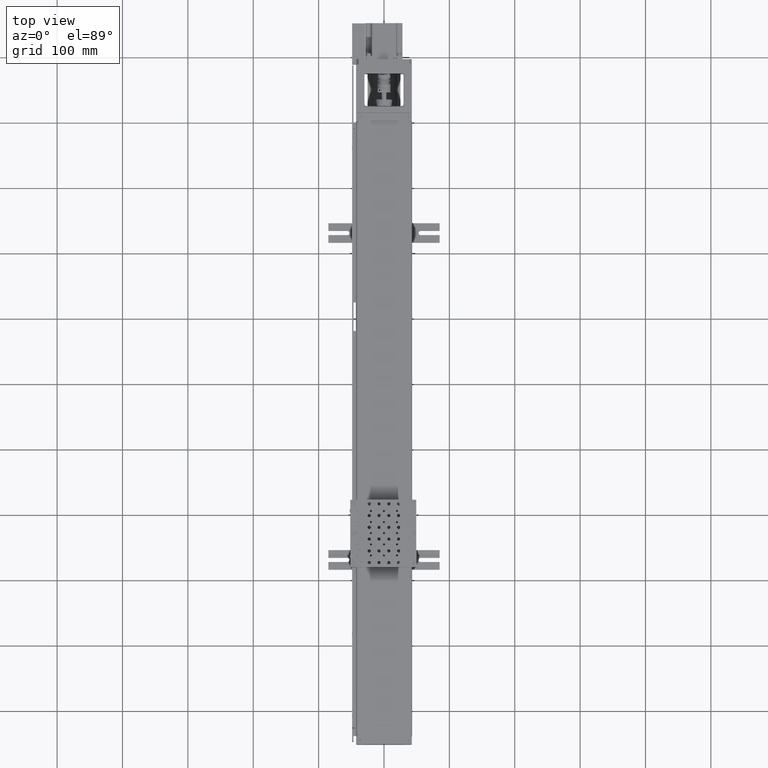
[diagram: clean part render]
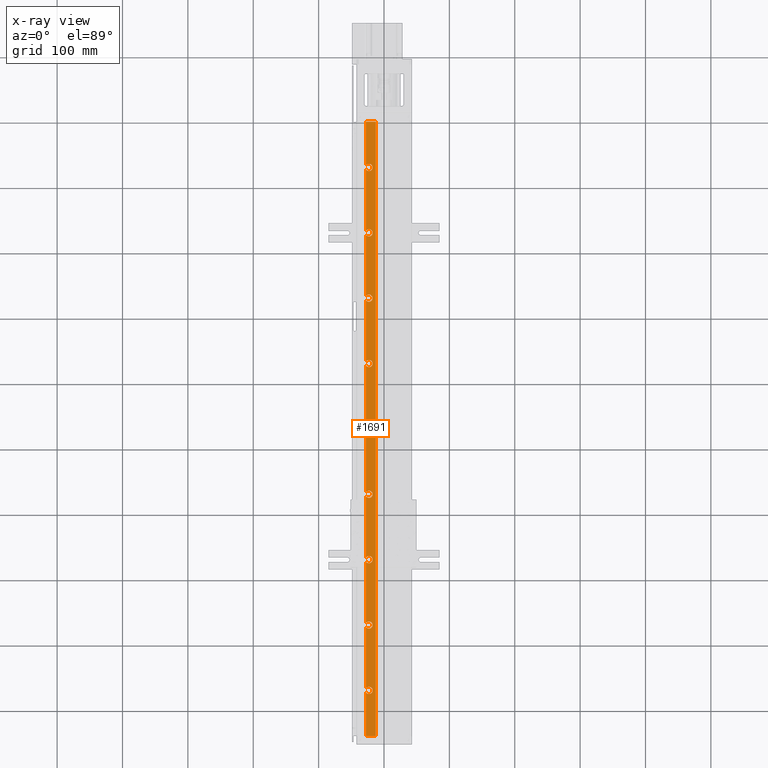
[diagram: x-ray — body ghosted, one internal face saturated and labeled with its STEP entity id]
A machine part, top view, then the same camera in x-ray: the body is ghosted and one INTERNAL B-rep face — a face not visible from any outside direction — is saturated and labeled: STEP entity #1691.
In plain terms, the highlighted planar face has unit normal (0.2588, 0, 0.9659).
Its self-contained STEP definition (entity closure, byte-faithful):
#1691=ADVANCED_FACE('',(#4258),#40557,.T.);
#4258=FACE_OUTER_BOUND('',#7074,.T.);
#7074=EDGE_LOOP('',(#15463,#15464,#15465,#15466,#15467,#15468,#15469,#15470,
#15471,#15472,#15473,#15474,#15475,#15476,#15477,#15478,#15479,#15480,#15481,
#15482,#15483,#15484,#15485,#15486,#15487,#15488,#15489,#15490,#15491,#15492,
#15493));
#15463=ORIENTED_EDGE('',*,*,#25201,.T.);
#15464=ORIENTED_EDGE('',*,*,#28427,.T.);
#15465=ORIENTED_EDGE('',*,*,#25202,.F.);
#15466=ORIENTED_EDGE('',*,*,#25203,.T.);
#15467=ORIENTED_EDGE('',*,*,#25159,.F.);
#15468=ORIENTED_EDGE('',*,*,#25204,.T.);
#15469=ORIENTED_EDGE('',*,*,#25205,.F.);
#15470=ORIENTED_EDGE('',*,*,#25206,.T.);
#15471=ORIENTED_EDGE('',*,*,#28451,.T.);
#15472=ORIENTED_EDGE('',*,*,#25207,.F.);
#15473=ORIENTED_EDGE('',*,*,#25208,.T.);
#15474=ORIENTED_EDGE('',*,*,#28448,.T.);
#15475=ORIENTED_EDGE('',*,*,#25209,.F.);
#15476=ORIENTED_EDGE('',*,*,#25210,.T.);
#15477=ORIENTED_EDGE('',*,*,#28445,.T.);
#15478=ORIENTED_EDGE('',*,*,#25211,.F.);
#15479=ORIENTED_EDGE('',*,*,#25212,.T.);
#15480=ORIENTED_EDGE('',*,*,#28442,.T.);
#15481=ORIENTED_EDGE('',*,*,#25213,.F.);
#15482=ORIENTED_EDGE('',*,*,#25214,.T.);
#15483=ORIENTED_EDGE('',*,*,#28439,.T.);
#15484=ORIENTED_EDGE('',*,*,#25215,.F.);
#15485=ORIENTED_EDGE('',*,*,#25216,.T.);
#15486=ORIENTED_EDGE('',*,*,#28436,.T.);
#15487=ORIENTED_EDGE('',*,*,#25217,.F.);
#15488=ORIENTED_EDGE('',*,*,#25218,.T.);
#15489=ORIENTED_EDGE('',*,*,#28433,.T.);
#15490=ORIENTED_EDGE('',*,*,#25219,.F.);
#15491=ORIENTED_EDGE('',*,*,#25220,.T.);
#15492=ORIENTED_EDGE('',*,*,#28430,.T.);
#15493=ORIENTED_EDGE('',*,*,#25221,.F.);
#25159=EDGE_CURVE('',#37689,#37690,#33358,.T.);
#25201=EDGE_CURVE('',#37732,#39574,#33366,.T.);
#25202=EDGE_CURVE('',#37734,#37733,#30888,.T.);
#25203=EDGE_CURVE('',#37734,#37690,#30889,.T.);
#25204=EDGE_CURVE('',#37689,#37735,#30890,.T.);
#25205=EDGE_CURVE('',#37736,#37735,#30891,.T.);
#25206=EDGE_CURVE('',#37736,#39590,#33367,.T.);
#25207=EDGE_CURVE('',#37738,#37737,#30892,.T.);
#25208=EDGE_CURVE('',#37738,#39588,#33368,.T.);
#25209=EDGE_CURVE('',#37740,#37739,#30893,.T.);
#25210=EDGE_CURVE('',#37740,#39586,#33369,.T.);
#25211=EDGE_CURVE('',#37742,#37741,#30894,.T.);
#25212=EDGE_CURVE('',#37742,#39584,#33370,.T.);
#25213=EDGE_CURVE('',#37744,#37743,#30895,.T.);
#25214=EDGE_CURVE('',#37744,#39582,#33371,.T.);
#25215=EDGE_CURVE('',#37746,#37745,#30896,.T.);
#25216=EDGE_CURVE('',#37746,#39580,#33372,.T.);
#25217=EDGE_CURVE('',#37748,#37747,#30897,.T.);
#25218=EDGE_CURVE('',#37748,#39578,#33373,.T.);
#25219=EDGE_CURVE('',#37750,#37749,#30898,.T.);
#25220=EDGE_CURVE('',#37750,#39576,#33374,.T.);
#25221=EDGE_CURVE('',#37732,#37751,#30899,.T.);
#28427=EDGE_CURVE('',#39574,#37733,#35177,.T.);
#28430=EDGE_CURVE('',#39576,#37751,#35180,.T.);
#28433=EDGE_CURVE('',#39578,#37749,#35183,.T.);
#28436=EDGE_CURVE('',#39580,#37747,#35186,.T.);
#28439=EDGE_CURVE('',#39582,#37745,#35189,.T.);
#28442=EDGE_CURVE('',#39584,#37743,#35192,.T.);
#28445=EDGE_CURVE('',#39586,#37741,#35195,.T.);
#28448=EDGE_CURVE('',#39588,#37739,#35198,.T.);
#28451=EDGE_CURVE('',#39590,#37737,#35201,.T.);
#30888=B_SPLINE_CURVE_WITH_KNOTS('',1,(#98705,#98706),.UNSPECIFIED.,.F.,
 .F.,(2,2),(0.,67.2731971240111),.UNSPECIFIED.);
#30889=B_SPLINE_CURVE_WITH_KNOTS('',1,(#98707,#98708),.UNSPECIFIED.,.F.,
 .F.,(2,2),(-1.67052643043555E-11,15.9380327930966),.UNSPECIFIED.);
#30890=B_SPLINE_CURVE_WITH_KNOTS('',1,(#98709,#98710),.UNSPECIFIED.,.F.,
 .F.,(2,2),(-15.9380327930966,1.67030833608806E-11),.UNSPECIFIED.);
#30891=B_SPLINE_CURVE_WITH_KNOTS('',1,(#98711,#98712),.UNSPECIFIED.,.F.,
 .F.,(2,2),(872.726802875989,940.),.UNSPECIFIED.);
#30892=B_SPLINE_CURVE_WITH_KNOTS('',1,(#98718,#98719),.UNSPECIFIED.,.F.,
 .F.,(2,2),(772.726802875989,867.273197124011),.UNSPECIFIED.);
#30893=B_SPLINE_CURVE_WITH_KNOTS('',1,(#98725,#98726),.UNSPECIFIED.,.F.,
 .F.,(2,2),(672.726802875989,767.273197124011),.UNSPECIFIED.);
#30894=B_SPLINE_CURVE_WITH_KNOTS('',1,(#98732,#98733),.UNSPECIFIED.,.F.,
 .F.,(2,2),(572.726802875989,667.273197124011),.UNSPECIFIED.);
#30895=B_SPLINE_CURVE_WITH_KNOTS('',1,(#98739,#98740),.UNSPECIFIED.,.F.,
 .F.,(2,2),(472.726802875989,567.273197124011),.UNSPECIFIED.);
#30896=B_SPLINE_CURVE_WITH_KNOTS('',1,(#98746,#98747),.UNSPECIFIED.,.F.,
 .F.,(2,2),(372.726802875989,467.273197124011),.UNSPECIFIED.);
#30897=B_SPLINE_CURVE_WITH_KNOTS('',1,(#98753,#98754),.UNSPECIFIED.,.F.,
 .F.,(2,2),(272.726802875989,367.273197124011),.UNSPECIFIED.);
#30898=B_SPLINE_CURVE_WITH_KNOTS('',1,(#98760,#98761),.UNSPECIFIED.,.F.,
 .F.,(2,2),(172.726802875989,267.273197124011),.UNSPECIFIED.);
#30899=B_SPLINE_CURVE_WITH_KNOTS('',1,(#98767,#98768),.UNSPECIFIED.,.F.,
 .F.,(2,2),(72.7268028759889,167.273197124011),.UNSPECIFIED.);
#33358=(
BOUNDED_CURVE()
B_SPLINE_CURVE(1,(#98609,#98610),.UNSPECIFIED.,.F.,.F.)
B_SPLINE_CURVE_WITH_KNOTS((2,2),(-313.333332790211,0.),.UNSPECIFIED.)
CURVE()
GEOMETRIC_REPRESENTATION_ITEM()
RATIONAL_B_SPLINE_CURVE((1.,1.))
REPRESENTATION_ITEM('')
);
#33366=(
BOUNDED_CURVE()
B_SPLINE_CURVE(2,(#98698,#98699,#98700,#98701,#98702,#98703,#98704),
 .UNSPECIFIED.,.F.,.F.)
B_SPLINE_CURVE_WITH_KNOTS((3,2,2,3),(-2.62285720246976,-1.31142860123488,
0.,2.32413375048783E-7),.UNSPECIFIED.)
CURVE()
GEOMETRIC_REPRESENTATION_ITEM()
RATIONAL_B_SPLINE_CURVE((1.,0.792612602998447,1.,0.792612602998451,1.,0.999999999999994,
1.))
REPRESENTATION_ITEM('')
);
#33367=(
BOUNDED_CURVE()
B_SPLINE_CURVE(2,(#98713,#98714,#98715,#98716,#98717),.UNSPECIFIED.,.F.,
 .F.)
B_SPLINE_CURVE_WITH_KNOTS((3,2,3),(-2.62285720246975,-1.31142860123488,
-2.17913733308413E-7),.UNSPECIFIED.)
CURVE()
GEOMETRIC_REPRESENTATION_ITEM()
RATIONAL_B_SPLINE_CURVE((1.,0.792612602998418,1.,0.792612664772929,1.))
REPRESENTATION_ITEM('')
);
#33368=(
BOUNDED_CURVE()
B_SPLINE_CURVE(2,(#98720,#98721,#98722,#98723,#98724),.UNSPECIFIED.,.F.,
 .F.)
B_SPLINE_CURVE_WITH_KNOTS((3,2,3),(-2.62285720246975,-1.31142860123488,
-2.17913589258935E-7),.UNSPECIFIED.)
CURVE()
GEOMETRIC_REPRESENTATION_ITEM()
RATIONAL_B_SPLINE_CURVE((1.,0.792612602998418,1.,0.792612664772889,1.))
REPRESENTATION_ITEM('')
);
#33369=(
BOUNDED_CURVE()
B_SPLINE_CURVE(2,(#98727,#98728,#98729,#98730,#98731),.UNSPECIFIED.,.F.,
 .F.)
B_SPLINE_CURVE_WITH_KNOTS((3,2,3),(-2.62285720246972,-1.31142860123485,
-2.17913767347518E-7),.UNSPECIFIED.)
CURVE()
GEOMETRIC_REPRESENTATION_ITEM()
RATIONAL_B_SPLINE_CURVE((1.,0.79261260299854,1.,0.792612664772947,1.))
REPRESENTATION_ITEM('')
);
#33370=(
BOUNDED_CURVE()
B_SPLINE_CURVE(2,(#98734,#98735,#98736,#98737,#98738),.UNSPECIFIED.,.F.,
 .F.)
B_SPLINE_CURVE_WITH_KNOTS((3,2,3),(-2.62285720246974,-1.31142860123487,
-2.17919947241423E-7),.UNSPECIFIED.)
CURVE()
GEOMETRIC_REPRESENTATION_ITEM()
RATIONAL_B_SPLINE_CURVE((1.,0.792612602998477,1.,0.792612664774655,1.))
REPRESENTATION_ITEM('')
);
#33371=(
BOUNDED_CURVE()
B_SPLINE_CURVE(2,(#98741,#98742,#98743,#98744,#98745),.UNSPECIFIED.,.F.,
 .F.)
B_SPLINE_CURVE_WITH_KNOTS((3,2,3),(-2.62285720246975,-1.31142860123488,
-2.1791369052419E-7),.UNSPECIFIED.)
CURVE()
GEOMETRIC_REPRESENTATION_ITEM()
RATIONAL_B_SPLINE_CURVE((1.,0.792612602998499,1.,0.792612664772878,1.))
REPRESENTATION_ITEM('')
);
#33372=(
BOUNDED_CURVE()
B_SPLINE_CURVE(2,(#98748,#98749,#98750,#98751,#98752),.UNSPECIFIED.,.F.,
 .F.)
B_SPLINE_CURVE_WITH_KNOTS((3,2,3),(-2.62285720246975,-1.31142860123488,
-2.1791368774554E-7),.UNSPECIFIED.)
CURVE()
GEOMETRIC_REPRESENTATION_ITEM()
RATIONAL_B_SPLINE_CURVE((1.,0.792612602998499,1.,0.792612664772878,1.))
REPRESENTATION_ITEM('')
);
#33373=(
BOUNDED_CURVE()
B_SPLINE_CURVE(2,(#98755,#98756,#98757,#98758,#98759),.UNSPECIFIED.,.F.,
 .F.)
B_SPLINE_CURVE_WITH_KNOTS((3,2,3),(-2.62285720246974,-1.31142860123487,
-2.17907421500125E-7),.UNSPECIFIED.)
CURVE()
GEOMETRIC_REPRESENTATION_ITEM()
RATIONAL_B_SPLINE_CURVE((1.,0.792612602998463,1.,0.792612664771073,1.))
REPRESENTATION_ITEM('')
);
#33374=(
BOUNDED_CURVE()
B_SPLINE_CURVE(2,(#98762,#98763,#98764,#98765,#98766),.UNSPECIFIED.,.F.,
 .F.)
B_SPLINE_CURVE_WITH_KNOTS((3,2,3),(-2.62285720246974,-1.31142860123487,
-2.17913656852717E-7),.UNSPECIFIED.)
CURVE()
GEOMETRIC_REPRESENTATION_ITEM()
RATIONAL_B_SPLINE_CURVE((1.,0.792612602998463,1.,0.792612664772841,1.))
REPRESENTATION_ITEM('')
);
#35177=(
BOUNDED_CURVE()
B_SPLINE_CURVE(2,(#111257,#111258,#111259,#111260,#111261),
 .UNSPECIFIED.,.F.,.F.)
B_SPLINE_CURVE_WITH_KNOTS((3,2,3),(2.32413375048783E-7,1.31142860123488,
2.62285720246976),.UNSPECIFIED.)
CURVE()
GEOMETRIC_REPRESENTATION_ITEM()
RATIONAL_B_SPLINE_CURVE((1.,0.792612668883253,1.,0.792612602998453,1.))
REPRESENTATION_ITEM('')
);
#35180=(
BOUNDED_CURVE()
B_SPLINE_CURVE(2,(#111269,#111270,#111271,#111272,#111273,#111274,#111275),
 .UNSPECIFIED.,.F.,.F.)
B_SPLINE_CURVE_WITH_KNOTS((3,2,2,3),(-2.17913656852717E-7,0.,1.31142860123487,
2.62285720246974),.UNSPECIFIED.)
CURVE()
GEOMETRIC_REPRESENTATION_ITEM()
RATIONAL_B_SPLINE_CURVE((1.,0.999999999999995,1.,0.792612602998433,1.,0.792612602998463,
1.))
REPRESENTATION_ITEM('')
);
#35183=(
BOUNDED_CURVE()
B_SPLINE_CURVE(2,(#111283,#111284,#111285,#111286,#111287,#111288,#111289),
 .UNSPECIFIED.,.F.,.F.)
B_SPLINE_CURVE_WITH_KNOTS((3,2,2,3),(-2.17907421500125E-7,0.,1.31142860123487,
2.62285720246974),.UNSPECIFIED.)
CURVE()
GEOMETRIC_REPRESENTATION_ITEM()
RATIONAL_B_SPLINE_CURVE((1.,0.999999999999995,1.,0.792612602998433,1.,0.792612602998463,
1.))
REPRESENTATION_ITEM('')
);
#35186=(
BOUNDED_CURVE()
B_SPLINE_CURVE(2,(#111297,#111298,#111299,#111300,#111301,#111302,#111303),
 .UNSPECIFIED.,.F.,.F.)
B_SPLINE_CURVE_WITH_KNOTS((3,2,2,3),(-2.1791368774554E-7,-7.105427357601E-15,
1.31142860123487,2.62285720246974),.UNSPECIFIED.)
CURVE()
GEOMETRIC_REPRESENTATION_ITEM()
RATIONAL_B_SPLINE_CURVE((1.,0.999999999999995,1.,0.79261260299844,1.,0.792612602998479,
1.))
REPRESENTATION_ITEM('')
);
#35189=(
BOUNDED_CURVE()
B_SPLINE_CURVE(2,(#111311,#111312,#111313,#111314,#111315,#111316,#111317),
 .UNSPECIFIED.,.F.,.F.)
B_SPLINE_CURVE_WITH_KNOTS((3,2,2,3),(-2.1791369052419E-7,-7.105427357601E-15,
1.31142860123487,2.62285720246974),.UNSPECIFIED.)
CURVE()
GEOMETRIC_REPRESENTATION_ITEM()
RATIONAL_B_SPLINE_CURVE((1.,0.999999999999995,1.,0.79261260299844,1.,0.792612602998479,
1.))
REPRESENTATION_ITEM('')
);
#35192=(
BOUNDED_CURVE()
B_SPLINE_CURVE(2,(#111325,#111326,#111327,#111328,#111329,#111330,#111331),
 .UNSPECIFIED.,.F.,.F.)
B_SPLINE_CURVE_WITH_KNOTS((3,2,2,3),(-2.17919947241423E-7,-6.88338275267597E-15,
1.31142860123486,2.62285720246972),.UNSPECIFIED.)
CURVE()
GEOMETRIC_REPRESENTATION_ITEM()
RATIONAL_B_SPLINE_CURVE((1.,0.999999999999995,1.,0.792612602998462,1.,0.79261260299842,
1.))
REPRESENTATION_ITEM('')
);
#35195=(
BOUNDED_CURVE()
B_SPLINE_CURVE(2,(#111339,#111340,#111341,#111342,#111343,#111344,#111345),
 .UNSPECIFIED.,.F.,.F.)
B_SPLINE_CURVE_WITH_KNOTS((3,2,2,3),(-2.17913767347518E-7,1.37667655053519E-14,
1.31142860123488,2.62285720246975),.UNSPECIFIED.)
CURVE()
GEOMETRIC_REPRESENTATION_ITEM()
RATIONAL_B_SPLINE_CURVE((1.,0.999999999999995,1.,0.792612602998504,1.,0.792612602998418,
1.))
REPRESENTATION_ITEM('')
);
#35198=(
BOUNDED_CURVE()
B_SPLINE_CURVE(2,(#111353,#111354,#111355,#111356,#111357,#111358,#111359),
 .UNSPECIFIED.,.F.,.F.)
B_SPLINE_CURVE_WITH_KNOTS((3,2,2,3),(-2.17913589258935E-7,-1.37667655053519E-14,
1.31142860123485,2.62285720246972),.UNSPECIFIED.)
CURVE()
GEOMETRIC_REPRESENTATION_ITEM()
RATIONAL_B_SPLINE_CURVE((1.,0.999999999999995,1.,0.792612602998504,1.,0.792612602998468,
1.))
REPRESENTATION_ITEM('')
);
#35201=(
BOUNDED_CURVE()
B_SPLINE_CURVE(2,(#111367,#111368,#111369,#111370,#111371,#111372,#111373),
 .UNSPECIFIED.,.F.,.F.)
B_SPLINE_CURVE_WITH_KNOTS((3,2,2,3),(-2.17913733308413E-7,-1.37667655053519E-14,
1.31142860123485,2.62285720246972),.UNSPECIFIED.)
CURVE()
GEOMETRIC_REPRESENTATION_ITEM()
RATIONAL_B_SPLINE_CURVE((1.,0.999999999999995,1.,0.792612602998504,1.,0.792612602998468,
1.))
REPRESENTATION_ITEM('')
);
#37689=VERTEX_POINT('',#71184);
#37690=VERTEX_POINT('',#71185);
#37732=VERTEX_POINT('',#71227);
#37733=VERTEX_POINT('',#71228);
#37734=VERTEX_POINT('',#71229);
#37735=VERTEX_POINT('',#71230);
#37736=VERTEX_POINT('',#71231);
#37737=VERTEX_POINT('',#71232);
#37738=VERTEX_POINT('',#71233);
#37739=VERTEX_POINT('',#71234);
#37740=VERTEX_POINT('',#71235);
#37741=VERTEX_POINT('',#71236);
#37742=VERTEX_POINT('',#71237);
#37743=VERTEX_POINT('',#71238);
#37744=VERTEX_POINT('',#71239);
#37745=VERTEX_POINT('',#71240);
#37746=VERTEX_POINT('',#71241);
#37747=VERTEX_POINT('',#71242);
#37748=VERTEX_POINT('',#71243);
#37749=VERTEX_POINT('',#71244);
#37750=VERTEX_POINT('',#71245);
#37751=VERTEX_POINT('',#71246);
#39574=VERTEX_POINT('',#73069);
#39576=VERTEX_POINT('',#73071);
#39578=VERTEX_POINT('',#73073);
#39580=VERTEX_POINT('',#73075);
#39582=VERTEX_POINT('',#73077);
#39584=VERTEX_POINT('',#73079);
#39586=VERTEX_POINT('',#73081);
#39588=VERTEX_POINT('',#73083);
#39590=VERTEX_POINT('',#73085);
#40557=PLANE('',#43179);
#43179=AXIS2_PLACEMENT_3D('',#65449,#45100,$);
#45100=DIRECTION('',(0.258819045101149,0.,0.965925826289436));
#65449=CARTESIAN_POINT('',(-27.7774234076424,-538.506304171534,22.1275480486168));
#71184=CARTESIAN_POINT('',(-12.3814999867011,401.494695828466,18.0022228012671));
#71185=CARTESIAN_POINT('',(-12.3814999867011,-538.505304171534,18.0022228012671));
#71227=CARTESIAN_POINT('',(-27.7764498319096,-465.778498586791,22.1272876612265));
#71228=CARTESIAN_POINT('',(-27.7764565299449,-471.232107379046,22.1272888021366));
#71229=CARTESIAN_POINT('',(-27.7764574818092,-538.505304171534,22.1272892295973));
#71230=CARTESIAN_POINT('',(-27.7764574818092,401.494695828466,22.1272892295973));
#71231=CARTESIAN_POINT('',(-27.77645639976,334.2214990857,22.1272887605777));
#71232=CARTESIAN_POINT('',(-27.7764501103763,328.767890342308,22.1272876998407));
#71233=CARTESIAN_POINT('',(-27.7764563997594,234.221499085702,22.1272887605777));
#71234=CARTESIAN_POINT('',(-27.7764501103762,228.767890342308,22.1272876998407));
#71235=CARTESIAN_POINT('',(-27.77645639976,134.221499085701,22.1272887605777));
#71236=CARTESIAN_POINT('',(-27.7764501103758,128.767890342307,22.1272876998407));
#71237=CARTESIAN_POINT('',(-27.77645639976,34.2214990857006,22.1272887605777));
#71238=CARTESIAN_POINT('',(-27.7764501103398,28.7678903422441,22.1272876998407));
#71239=CARTESIAN_POINT('',(-27.77645639976,-65.7785009142994,22.1272887605777));
#71240=CARTESIAN_POINT('',(-27.7764501103763,-71.2321096576921,22.1272876998407));
#71241=CARTESIAN_POINT('',(-27.77645639976,-165.778500914299,22.1272887605777));
#71242=CARTESIAN_POINT('',(-27.7764501103763,-171.232109657692,22.1272876998407));
#71243=CARTESIAN_POINT('',(-27.7764563997235,-265.778500914235,22.1272887605777));
#71244=CARTESIAN_POINT('',(-27.7764501103763,-271.232109657692,22.1272876998407));
#71245=CARTESIAN_POINT('',(-27.77645639976,-365.778500914299,22.1272887605777));
#71246=CARTESIAN_POINT('',(-27.7764501103763,-371.232109657692,22.1272876998407));
#73069=CARTESIAN_POINT('',(-17.4999956991205,-468.505304171541,19.3737197483942));
#73071=CARTESIAN_POINT('',(-17.4999957732612,-368.505304171529,19.3737197469218));
#73073=CARTESIAN_POINT('',(-17.499995773243,-268.505304171529,19.3737197469219));
#73075=CARTESIAN_POINT('',(-17.4999957732612,-168.505304171529,19.3737197469218));
#73077=CARTESIAN_POINT('',(-17.4999957732613,-68.5053041715288,19.3737197469219));
#73079=CARTESIAN_POINT('',(-17.499995773243,31.4946958284712,19.3737197469218));
#73081=CARTESIAN_POINT('',(-17.499995773261,131.494695828471,19.3737197469218));
#73083=CARTESIAN_POINT('',(-17.499995773261,231.494695828471,19.3737197469218));
#73085=CARTESIAN_POINT('',(-17.4999957732613,331.494695828471,19.3737197469218));
#98609=CARTESIAN_POINT('',(-12.3814999867011,401.494695828466,18.0022228012671));
#98610=CARTESIAN_POINT('',(-12.3814999867011,-538.505304171534,18.0022228012671));
#98698=CARTESIAN_POINT('',(-27.7764498319096,-465.778498586791,22.1272876612265));
#98699=CARTESIAN_POINT('',(-25.6788235918293,-462.104156496576,21.5652308446879));
#98700=CARTESIAN_POINT('',(-21.5894070472907,-463.189262202022,20.4694748539792));
#98701=CARTESIAN_POINT('',(-17.499990502752,-464.274367907468,19.3737188632706));
#98702=CARTESIAN_POINT('',(-17.4999956991189,-468.505302982919,19.373719748394));
#98703=CARTESIAN_POINT('',(-17.4999956991196,-468.50530357723,19.3737197483941));
#98704=CARTESIAN_POINT('',(-17.4999956991205,-468.505304171541,19.3737197483942));
#98705=CARTESIAN_POINT('',(-27.7764574818092,-538.505304171534,22.1272892295973));
#98706=CARTESIAN_POINT('',(-27.7764565299449,-471.232107379046,22.1272888021366));
#98707=CARTESIAN_POINT('',(-27.7764574818092,-538.505304171534,22.1272892295973));
#98708=CARTESIAN_POINT('',(-12.3814999867011,-538.505304171534,18.0022228012671));
#98709=CARTESIAN_POINT('',(-12.3814999867011,401.494695828466,18.0022228012671));
#98710=CARTESIAN_POINT('',(-27.7764574818092,401.494695828466,22.1272892295973));
#98711=CARTESIAN_POINT('',(-27.77645639976,334.2214990857,22.1272887605777));
#98712=CARTESIAN_POINT('',(-27.7764574818092,401.494695828466,22.1272892295973));
#98713=CARTESIAN_POINT('',(-27.77645639976,334.2214990857,22.1272887605777));
#98714=CARTESIAN_POINT('',(-25.6788389098893,337.895841142992,21.565233427388));
#98715=CARTESIAN_POINT('',(-21.5894197812412,336.810735447269,20.4694769986172));
#98716=CARTESIAN_POINT('',(-17.5000015099083,335.725629979029,19.3737207995632));
#98717=CARTESIAN_POINT('',(-17.4999957732613,331.494695828471,19.3737197469218));
#98718=CARTESIAN_POINT('',(-27.7764563997594,234.221499085702,22.1272887605777));
#98719=CARTESIAN_POINT('',(-27.7764501103763,328.767890342308,22.1272876998407));
#98720=CARTESIAN_POINT('',(-27.7764563997594,234.221499085702,22.1272887605777));
#98721=CARTESIAN_POINT('',(-25.6788389098883,237.895841142994,21.565233427388));
#98722=CARTESIAN_POINT('',(-21.5894197812403,236.810735447271,20.4694769986172));
#98723=CARTESIAN_POINT('',(-17.500001509907,235.725629979031,19.373720799563));
#98724=CARTESIAN_POINT('',(-17.499995773261,231.494695828471,19.3737197469218));
#98725=CARTESIAN_POINT('',(-27.77645639976,134.221499085701,22.1272887605777));
#98726=CARTESIAN_POINT('',(-27.7764501103762,228.767890342308,22.1272876998407));
#98727=CARTESIAN_POINT('',(-27.77645639976,134.221499085701,22.1272887605777));
#98728=CARTESIAN_POINT('',(-25.6788389098896,137.895841142993,21.565233427388));
#98729=CARTESIAN_POINT('',(-21.5894197812413,136.81073544727,20.4694769986172));
#98730=CARTESIAN_POINT('',(-17.5000015099086,135.72562997903,19.3737207995633));
#98731=CARTESIAN_POINT('',(-17.499995773261,131.494695828471,19.3737197469218));
#98732=CARTESIAN_POINT('',(-27.77645639976,34.2214990857006,22.1272887605777));
#98733=CARTESIAN_POINT('',(-27.7764501103758,128.767890342307,22.1272876998407));
#98734=CARTESIAN_POINT('',(-27.77645639976,34.2214990857006,22.1272887605777));
#98735=CARTESIAN_POINT('',(-25.6788389099139,37.8958411430351,21.565233427388));
#98736=CARTESIAN_POINT('',(-21.5894197812584,36.8107354472993,20.4694769986172));
#98737=CARTESIAN_POINT('',(-17.5000015099428,35.7256299790532,19.3737207995698));
#98738=CARTESIAN_POINT('',(-17.499995773243,31.4946958284712,19.3737197469218));
#98739=CARTESIAN_POINT('',(-27.77645639976,-65.7785009142994,22.1272887605777));
#98740=CARTESIAN_POINT('',(-27.7764501103398,28.7678903422441,22.1272876998407));
#98741=CARTESIAN_POINT('',(-27.77645639976,-65.7785009142994,22.1272887605777));
#98742=CARTESIAN_POINT('',(-25.6788389098893,-62.1041588570081,21.565233427388));
#98743=CARTESIAN_POINT('',(-21.5894197812412,-63.1892645527311,20.4694769986171));
#98744=CARTESIAN_POINT('',(-17.5000015099081,-64.274370020971,19.3737207995632));
#98745=CARTESIAN_POINT('',(-17.4999957732612,-68.5053041715287,19.3737197469219));
#98746=CARTESIAN_POINT('',(-27.77645639976,-165.778500914299,22.1272887605777));
#98747=CARTESIAN_POINT('',(-27.7764501103763,-71.2321096576921,22.1272876998407));
#98748=CARTESIAN_POINT('',(-27.77645639976,-165.778500914299,22.1272887605777));
#98749=CARTESIAN_POINT('',(-25.6788389098893,-162.104158857008,21.565233427388));
#98750=CARTESIAN_POINT('',(-21.5894197812412,-163.189264552731,20.4694769986172));
#98751=CARTESIAN_POINT('',(-17.5000015099081,-164.274370020971,19.3737207995632));
#98752=CARTESIAN_POINT('',(-17.4999957732612,-168.505304171529,19.3737197469218));
#98753=CARTESIAN_POINT('',(-27.7764563997235,-265.778500914235,22.1272887605777));
#98754=CARTESIAN_POINT('',(-27.7764501103763,-171.232109657692,22.1272876998407));
#98755=CARTESIAN_POINT('',(-27.7764563997235,-265.778500914235,22.1272887605777));
#98756=CARTESIAN_POINT('',(-25.6788389098283,-262.104158856901,21.565233427388));
#98757=CARTESIAN_POINT('',(-21.5894197811873,-263.189264552637,20.4694769986171));
#98758=CARTESIAN_POINT('',(-17.5000015098369,-264.274370020896,19.3737207995566));
#98759=CARTESIAN_POINT('',(-17.499995773243,-268.505304171529,19.3737197469219));
#98760=CARTESIAN_POINT('',(-27.77645639976,-365.778500914299,22.1272887605777));
#98761=CARTESIAN_POINT('',(-27.7764501103763,-271.232109657692,22.1272876998407));
#98762=CARTESIAN_POINT('',(-27.77645639976,-365.778500914299,22.1272887605777));
#98763=CARTESIAN_POINT('',(-25.6788389098893,-362.104158857008,21.565233427388));
#98764=CARTESIAN_POINT('',(-21.5894197812411,-363.189264552731,20.4694769986172));
#98765=CARTESIAN_POINT('',(-17.500001509908,-364.274370020971,19.3737207995631));
#98766=CARTESIAN_POINT('',(-17.4999957732612,-368.505304171529,19.3737197469218));
#98767=CARTESIAN_POINT('',(-27.7764498319096,-465.778498586791,22.1272876612265));
#98768=CARTESIAN_POINT('',(-27.7764501103763,-371.232109657692,22.1272876998407));
#111257=CARTESIAN_POINT('',(-17.4999956991205,-468.505304171541,19.3737197483942));
#111258=CARTESIAN_POINT('',(-17.5000018098456,-472.736238300989,19.3737208785193));
#111259=CARTESIAN_POINT('',(-21.5894201054436,-473.821343763815,20.4694770782403));
#111260=CARTESIAN_POINT('',(-25.6788393154012,-474.906449469261,21.5652335229632));
#111261=CARTESIAN_POINT('',(-27.7764565299449,-471.232107379046,22.1272888021366));
#111269=CARTESIAN_POINT('',(-17.4999957732612,-368.505304171529,19.3737197469218));
#111270=CARTESIAN_POINT('',(-17.4999957732605,-368.505304728762,19.3737197469217));
#111271=CARTESIAN_POINT('',(-17.4999957732598,-368.505305285996,19.3737197469216));
#111272=CARTESIAN_POINT('',(-17.4999908939267,-372.736240323536,19.3737189239969));
#111273=CARTESIAN_POINT('',(-21.5894075197748,-373.82134601926,20.4694749306576));
#111274=CARTESIAN_POINT('',(-25.678824145623,-374.906451714983,21.5652309373184));
#111275=CARTESIAN_POINT('',(-27.7764501103763,-371.232109657692,22.1272876998407));
#111283=CARTESIAN_POINT('',(-17.499995773243,-268.505304171529,19.3737197469219));
#111284=CARTESIAN_POINT('',(-17.4999957732423,-268.505304728746,19.3737197469217));
#111285=CARTESIAN_POINT('',(-17.4999957732416,-268.505305285964,19.3737197469216));
#111286=CARTESIAN_POINT('',(-17.4999908939367,-272.736240323554,19.3737189239969));
#111287=CARTESIAN_POINT('',(-21.5894075197921,-273.821346019291,20.4694749306577));
#111288=CARTESIAN_POINT('',(-25.6788241456475,-274.906451715026,21.5652309373184));
#111289=CARTESIAN_POINT('',(-27.7764501103763,-271.232109657692,22.1272876998407));
#111297=CARTESIAN_POINT('',(-17.4999957732612,-168.505304171529,19.3737197469218));
#111298=CARTESIAN_POINT('',(-17.4999957732605,-168.505304728762,19.3737197469217));
#111299=CARTESIAN_POINT('',(-17.4999957732598,-168.505305285996,19.3737197469216));
#111300=CARTESIAN_POINT('',(-17.4999908939267,-172.736240323536,19.3737189239969));
#111301=CARTESIAN_POINT('',(-21.5894075197748,-173.82134601926,20.4694749306576));
#111302=CARTESIAN_POINT('',(-25.6788241456228,-174.906451714983,21.5652309373184));
#111303=CARTESIAN_POINT('',(-27.7764501103763,-171.232109657692,22.1272876998407));
#111311=CARTESIAN_POINT('',(-17.4999957732613,-68.5053041715288,19.3737197469219));
#111312=CARTESIAN_POINT('',(-17.4999957732605,-68.5053047287622,19.3737197469217));
#111313=CARTESIAN_POINT('',(-17.4999957732599,-68.5053052859957,19.3737197469216));
#111314=CARTESIAN_POINT('',(-17.4999908939267,-72.7362403235364,19.3737189239969));
#111315=CARTESIAN_POINT('',(-21.5894075197748,-73.8213460192604,20.4694749306577));
#111316=CARTESIAN_POINT('',(-25.6788241456229,-74.9064517149834,21.5652309373184));
#111317=CARTESIAN_POINT('',(-27.7764501103763,-71.2321096576921,22.1272876998407));
#111325=CARTESIAN_POINT('',(-17.499995773243,31.4946958284712,19.3737197469218));
#111326=CARTESIAN_POINT('',(-17.4999957732422,31.4946952712218,19.3737197469217));
#111327=CARTESIAN_POINT('',(-17.4999957732416,31.4946947139723,19.3737197469216));
#111328=CARTESIAN_POINT('',(-17.4999908938801,27.2637596763821,19.3737189239969));
#111329=CARTESIAN_POINT('',(-21.589407519721,26.1786539806454,20.4694749306576));
#111330=CARTESIAN_POINT('',(-25.6788241455618,25.0935482849096,21.5652309373184));
#111331=CARTESIAN_POINT('',(-27.7764501103398,28.7678903422441,22.1272876998407));
#111339=CARTESIAN_POINT('',(-17.499995773261,131.494695828471,19.3737197469218));
#111340=CARTESIAN_POINT('',(-17.4999957732602,131.494695271238,19.3737197469217));
#111341=CARTESIAN_POINT('',(-17.4999957732596,131.494694714004,19.3737197469216));
#111342=CARTESIAN_POINT('',(-17.4999908939261,127.263759676462,19.3737189239969));
#111343=CARTESIAN_POINT('',(-21.5894075197741,126.178653980738,20.4694749306576));
#111344=CARTESIAN_POINT('',(-25.678824145622,125.093548285015,21.5652309373184));
#111345=CARTESIAN_POINT('',(-27.7764501103758,128.767890342307,22.1272876998407));
#111353=CARTESIAN_POINT('',(-17.499995773261,231.494695828471,19.3737197469218));
#111354=CARTESIAN_POINT('',(-17.4999957732602,231.494695271238,19.3737197469217));
#111355=CARTESIAN_POINT('',(-17.4999957732596,231.494694714005,19.3737197469216));
#111356=CARTESIAN_POINT('',(-17.4999908939268,227.263759676463,19.3737189239969));
#111357=CARTESIAN_POINT('',(-21.589407519775,226.178653980739,20.4694749306576));
#111358=CARTESIAN_POINT('',(-25.6788241456232,225.093548285015,21.5652309373184));
#111359=CARTESIAN_POINT('',(-27.7764501103762,228.767890342308,22.1272876998407));
#111367=CARTESIAN_POINT('',(-17.4999957732613,331.494695828471,19.3737197469218));
#111368=CARTESIAN_POINT('',(-17.4999957732605,331.494695271238,19.3737197469217));
#111369=CARTESIAN_POINT('',(-17.4999957732599,331.494694714004,19.3737197469216));
#111370=CARTESIAN_POINT('',(-17.4999908939267,327.263759676464,19.3737189239969));
#111371=CARTESIAN_POINT('',(-21.5894075197748,326.17865398074,20.4694749306576));
#111372=CARTESIAN_POINT('',(-25.6788241456229,325.093548285016,21.5652309373184));
#111373=CARTESIAN_POINT('',(-27.7764501103763,328.767890342308,22.1272876998407));